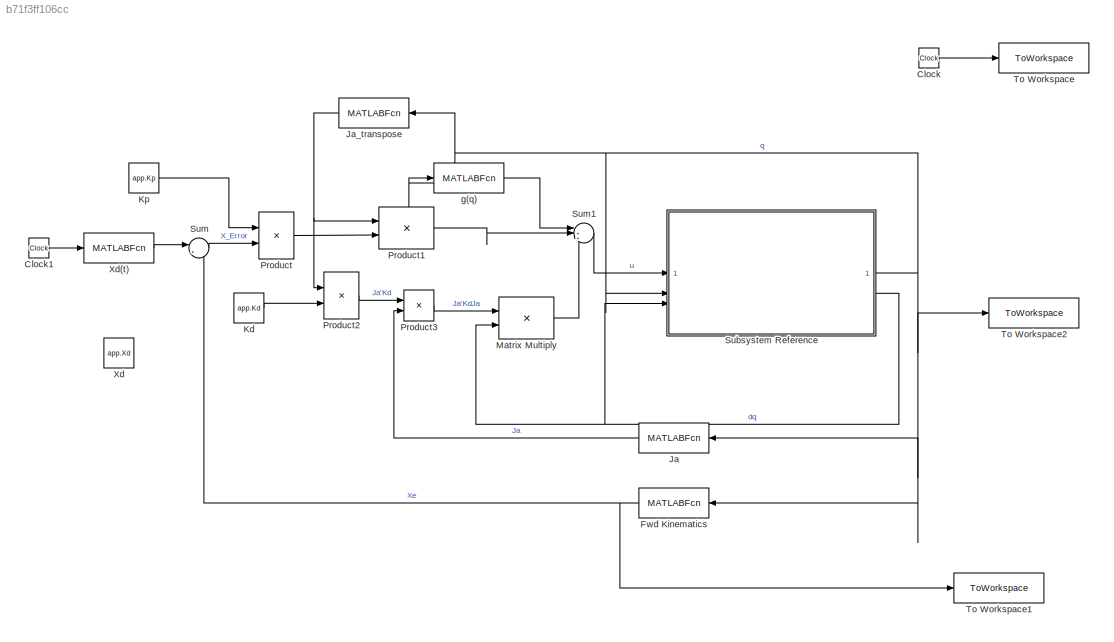
MODEL slx_b71f3ff106cc
KIND model
CONFIG AbsTol = auto
CONFIG EnableMultiTasking = off
CONFIG FixedStep = auto
CONFIG MaxStep = auto
CONFIG MinStep = auto
CONFIG RelTol = 1e-3
CONFIG SampleTimeConstraint = Unconstrained
CONFIG SolverName = VariableStepAuto
CONFIG StartTime = 0.0
CONFIG StopTime = app.StopTime
BLOCK [Clock] Clock
BLOCK [Clock] Clock1
BLOCK [MATLABFcn] Fwd Kinematics
  MATLABFcn = TrimUnusedDofs_rows(app,forwardKinematics(app, u))
  NameLocation = top
  Output1D = off
  OutputDimensions = [app.numActiveDofs,1]
BLOCK [MATLABFcn] Ja
  MATLABFcn = TrimUnusedDofs_rows(app,GenerateAnlyticalJacobian(app, u))
  NameLocation = top
  Output1D = off
  OutputDimensions = [app.numActiveDofs,app.NumJoints]
BLOCK [MATLABFcn] Ja_transpose
  MATLABFcn = transpose(TrimUnusedDofs_rows(app, GenerateAnlyticalJacobian(app, u)))
  NameLocation = top
  Output1D = off
  OutputDimensions = [app.NumJoints,app.numActiveDofs]
BLOCK [Constant] Kd
  Value = app.Kd
BLOCK [Constant] Kp
  Value = app.Kp
BLOCK [Product] Matrix Multiply
  Multiplication = Matrix(*)
BLOCK [Product] Product
  Multiplication = Matrix(*)
BLOCK [Product] Product1
  Multiplication = Matrix(*)
BLOCK [Product] Product2
  Multiplication = Matrix(*)
BLOCK [Product] Product3
  Multiplication = Matrix(*)
BLOCK [SubSystem] Subsystem Reference
  ReferencedSubsystem = ManipulatorMechanicsSubsystem
BLOCK [Sum] Sum
  Inputs = |+-
BLOCK [Sum] Sum1
  Inputs = |++-
BLOCK [ToWorkspace] To Workspace
  FixptAsFi = on
  MaxDataPoints = inf
  SampleTime = -1
  SaveFormat = Timeseries
  VariableName = SimTime
BLOCK [ToWorkspace] To Workspace1
  FixptAsFi = on
  MaxDataPoints = inf
  SampleTime = -1
  SaveFormat = Timeseries
  VariableName = Xe
BLOCK [ToWorkspace] To Workspace2
  FixptAsFi = on
  MaxDataPoints = inf
  SampleTime = -1
  SaveFormat = Timeseries
  VariableName = q_sim
BLOCK [Constant] Xd
  Commented = on
  Value = app.Xd
  VectorParams1D = off
BLOCK [MATLABFcn] Xd(t)
  MATLABFcn = app.Calc_Xd(u)
  Output1D = off
  OutputDimensions = [app.numActiveDofs,1]
BLOCK [MATLABFcn] g(q)
  MATLABFcn = Generate_G(app, u)
  Output1D = off
  OutputDimensions = [app.NumJoints,1]
LINE Clock1:1 -> Xd(t):1
LINE Clock:1 -> To Workspace:1
NET Fwd Kinematics:1 -> Sum:2, To Workspace1:1
LINE Ja:1 -> Product3:2
NET Ja_transpose:1 -> Product1:1, Product2:1
LINE Kd:1 -> Product2:2
LINE Kp:1 -> Product:1
LINE Matrix Multiply:1 -> Sum1:3
LINE Product1:1 -> Sum1:2
LINE Product2:1 -> Product3:1
LINE Product3:1 -> Matrix Multiply:1
LINE Product:1 -> Product1:2
NET Subsystem Reference:1 -> Fwd Kinematics:1, Ja:1, Ja_transpose:1, Subsystem Reference:2, To Workspace2:1, g(q):1
NET Subsystem Reference:2 -> Matrix Multiply:2, Subsystem Reference:3
LINE Sum1:1 -> Subsystem Reference:1
LINE Sum:1 -> Product:2
LINE Xd(t):1 -> Sum:1
LINE g(q):1 -> Sum1:1
note: NET lines group one-source signal fan-out (src -> all destinations, sorted); 1:1 wires keep LINE
